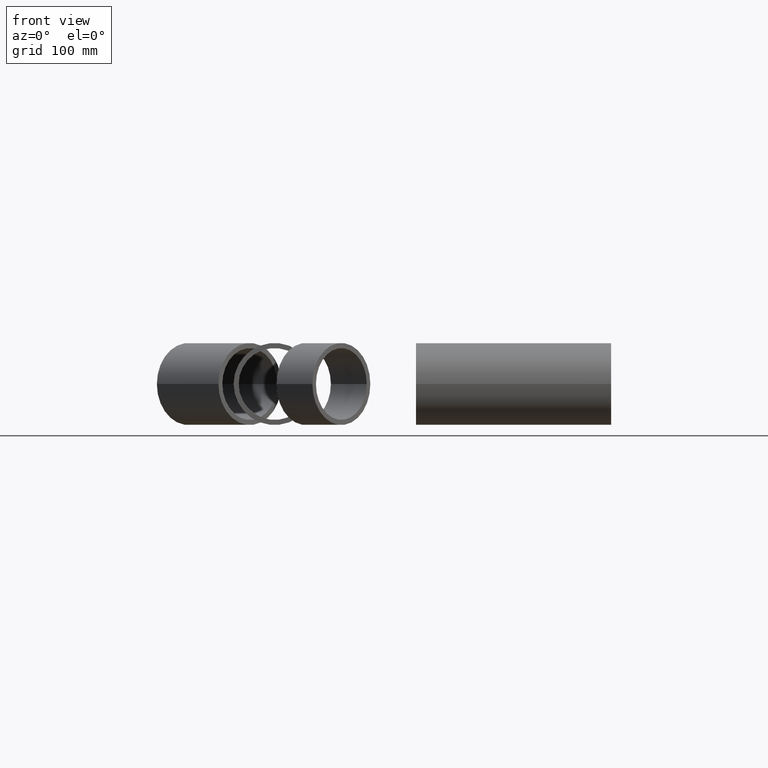
[diagram: clean part render]
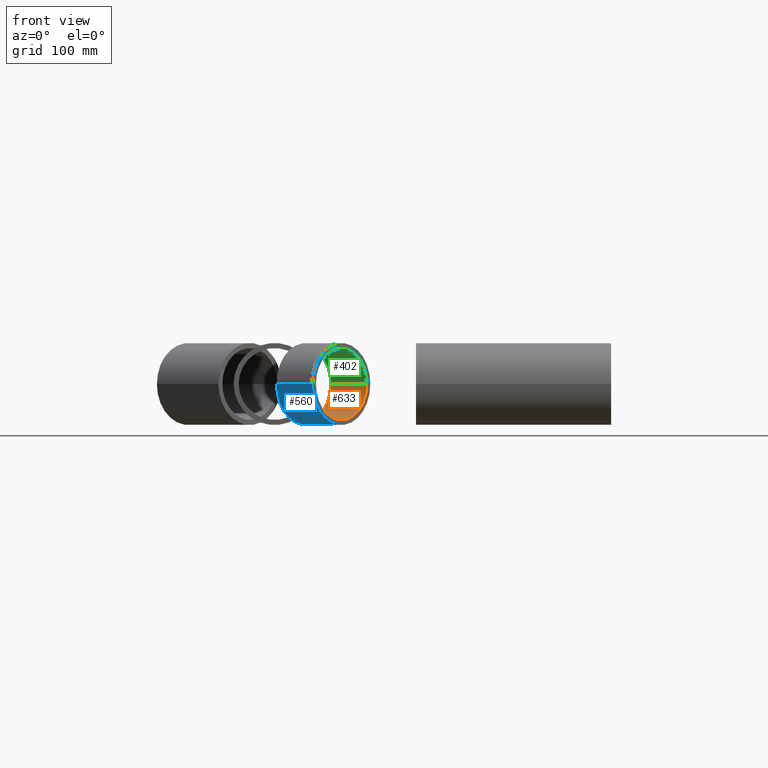
[diagram: same view with three faces highlighted in distinct colors, each labeled with its STEP entity id]
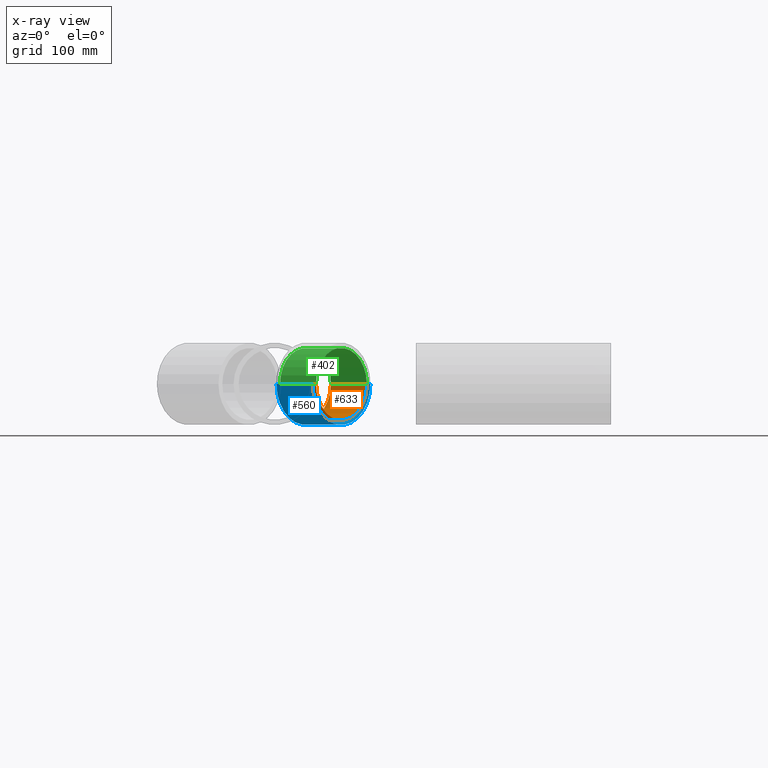
[diagram: x-ray of the same camera — body ghosted, the three highlighted faces saturated]
A machine part, front view with three faces highlighted in distinct colors.
The next image is the same camera in x-ray (body ghosted, the three faces saturated) — at least one of them is partly hidden behind the body in this view.
Their STEP definitions:

[orange] entity #633 — the highlighted cylindrical surface (edge-blend (fillet) strip) has radius 38.95 mm, axis along (-0.7071, 0.7071, -0).
#20 = EDGE_LOOP ( 'NONE', ( #720, #119, #463, #576 ) ) ;
#28 = CARTESIAN_POINT ( 'NONE',  ( -186.7682899632294209, 33.53627355413972566, 0.000000000000000000 ) ) ;
#57 = AXIS2_PLACEMENT_3D ( 'NONE', #28, #250, #695 ) ;
#74 = DIRECTION ( 'NONE',  ( 0.7071067811865520136, -0.7071067811865432429, 0.000000000000000000 ) ) ;
#81 = LINE ( 'NONE', #478, #369 ) ;
#107 = CARTESIAN_POINT ( 'NONE',  ( -159.2264808360135362, 61.07808268135593721, 4.769999282678943960E-15 ) ) ;
#119 = ORIENTED_EDGE ( 'NONE', *, *, #427, .T. ) ;
#130 = VECTOR ( 'NONE', #492, 1000.000000000000000 ) ;
#176 = CARTESIAN_POINT ( 'NONE',  ( -186.7682899632294209, 33.53627355413972566, 0.000000000000000000 ) ) ;
#183 = DIRECTION ( 'NONE',  ( 0.7071067811865431318, 0.7071067811865521247, 0.000000000000000000 ) ) ;
#222 = VERTEX_POINT ( 'NONE', #393 ) ;
#236 = VERTEX_POINT ( 'NONE', #446 ) ;
#250 = DIRECTION ( 'NONE',  ( -0.7071067811865519026, 0.7071067811865431318, -0.000000000000000000 ) ) ;
#296 = AXIS2_PLACEMENT_3D ( 'NONE', #176, #74, #183 ) ;
#297 = EDGE_CURVE ( 'NONE', #236, #222, #681, .T. ) ;
#357 = CARTESIAN_POINT ( 'NONE',  ( -253.2009720557056198, 44.88533739218336649, 0.000000000000000000 ) ) ;
#369 = VECTOR ( 'NONE', #648, 1000.000000000000000 ) ;
#373 = EDGE_CURVE ( 'NONE', #236, #610, #81, .T. ) ;
#393 = CARTESIAN_POINT ( 'NONE',  ( -159.2264808360135362, 61.07808268135593721, 4.769999282678943960E-15 ) ) ;
#403 = CARTESIAN_POINT ( 'NONE',  ( -225.6591629284897635, 72.42714651939957093, 0.000000000000000000 ) ) ;
#427 = EDGE_CURVE ( 'NONE', #222, #447, #435, .T. ) ;
#435 = LINE ( 'NONE', #107, #130 ) ;
#446 = CARTESIAN_POINT ( 'NONE',  ( -214.3100990904453056, 5.994464426923508782, 0.000000000000000000 ) ) ;
#447 = VERTEX_POINT ( 'NONE', #558 ) ;
#463 = ORIENTED_EDGE ( 'NONE', *, *, #687, .F. ) ;
#464 = DIRECTION ( 'NONE',  ( 0.7071067811865520136, -0.7071067811865432429, 0.000000000000000000 ) ) ;
#478 = CARTESIAN_POINT ( 'NONE',  ( -214.3100990904453056, 5.994464426923511446, 0.000000000000000000 ) ) ;
#485 = CIRCLE ( 'NONE', #725, 38.95000000000003126 ) ;
#492 = DIRECTION ( 'NONE',  ( -0.7071067811865519026, 0.7071067811865431318, -0.000000000000000000 ) ) ;
#558 = CARTESIAN_POINT ( 'NONE',  ( -198.1173538012738788, 99.96895564661578248, 4.769999282678943960E-15 ) ) ;
#576 = ORIENTED_EDGE ( 'NONE', *, *, #373, .F. ) ;
#585 = CYLINDRICAL_SURFACE ( 'NONE', #57, 38.95000000000003126 ) ;
#610 = VERTEX_POINT ( 'NONE', #357 ) ;
#628 = DIRECTION ( 'NONE',  ( 0.7071067811865431318, 0.7071067811865521247, 0.000000000000000000 ) ) ;
#633 = ADVANCED_FACE ( 'NONE', ( #703 ), #585, .F. ) ;
#648 = DIRECTION ( 'NONE',  ( -0.7071067811865519026, 0.7071067811865431318, -0.000000000000000000 ) ) ;
#681 = CIRCLE ( 'NONE', #296, 38.95000000000003126 ) ;
#687 = EDGE_CURVE ( 'NONE', #610, #447, #485, .T. ) ;
#695 = DIRECTION ( 'NONE',  ( -0.7071067811865431318, -0.7071067811865517916, 0.000000000000000000 ) ) ;
#703 = FACE_OUTER_BOUND ( 'NONE', #20, .T. ) ;
#720 = ORIENTED_EDGE ( 'NONE', *, *, #297, .T. ) ;
#725 = AXIS2_PLACEMENT_3D ( 'NONE', #403, #464, #628 ) ;

[blue] entity #560 — the highlighted cylindrical surface (partial cylindrical patch) has radius 44.45 mm, axis along (-0.7071, 0.7071, -0).
#4 = CYLINDRICAL_SURFACE ( 'NONE', #424, 44.45000000000001705 ) ;
#8 = ORIENTED_EDGE ( 'NONE', *, *, #623, .F. ) ;
#23 = CARTESIAN_POINT ( 'NONE',  ( -186.7682899632294209, 33.53627355413972566, 0.000000000000000000 ) ) ;
#71 = AXIS2_PLACEMENT_3D ( 'NONE', #561, #299, #528 ) ;
#72 = VECTOR ( 'NONE', #361, 1000.000000000000000 ) ;
#92 = DIRECTION ( 'NONE',  ( -0.7071067811865519026, 0.7071067811865431318, -0.000000000000000000 ) ) ;
#175 = VERTEX_POINT ( 'NONE', #461 ) ;
#178 = ORIENTED_EDGE ( 'NONE', *, *, #599, .F. ) ;
#188 = EDGE_LOOP ( 'NONE', ( #8, #178, #559, #632 ) ) ;
#197 = DIRECTION ( 'NONE',  ( 0.7071067811865520136, -0.7071067811865432429, 0.000000000000000000 ) ) ;
#235 = CARTESIAN_POINT ( 'NONE',  ( -186.7682899632294209, 33.53627355413972566, 0.000000000000000000 ) ) ;
#238 = AXIS2_PLACEMENT_3D ( 'NONE', #23, #197, #533 ) ;
#246 = CARTESIAN_POINT ( 'NONE',  ( -155.3373935394875502, 64.96716997788196579, 5.443555022209987275E-15 ) ) ;
#247 = VERTEX_POINT ( 'NONE', #621 ) ;
#299 = DIRECTION ( 'NONE',  ( 0.7071067811865520136, -0.7071067811865432429, 0.000000000000000000 ) ) ;
#322 = DIRECTION ( 'NONE',  ( -0.7071067811865519026, 0.7071067811865431318, -0.000000000000000000 ) ) ;
#334 = LINE ( 'NONE', #501, #564 ) ;
#361 = DIRECTION ( 'NONE',  ( -0.7071067811865519026, 0.7071067811865431318, -0.000000000000000000 ) ) ;
#401 = VERTEX_POINT ( 'NONE', #642 ) ;
#424 = AXIS2_PLACEMENT_3D ( 'NONE', #235, #322, #605 ) ;
#437 = CIRCLE ( 'NONE', #71, 44.45000000000002416 ) ;
#459 = EDGE_CURVE ( 'NONE', #401, #562, #334, .T. ) ;
#461 = CARTESIAN_POINT ( 'NONE',  ( -155.3373935394875502, 64.96716997788196579, 5.443555022209987275E-15 ) ) ;
#499 = CARTESIAN_POINT ( 'NONE',  ( -257.0900593522316058, 40.99625009565733080, 0.000000000000000000 ) ) ;
#501 = CARTESIAN_POINT ( 'NONE',  ( -218.1991863869712915, 2.105377130397482865, 0.000000000000000000 ) ) ;
#528 = DIRECTION ( 'NONE',  ( 0.7071067811865431318, 0.7071067811865519026, 0.000000000000000000 ) ) ;
#533 = DIRECTION ( 'NONE',  ( 0.7071067811865429098, 0.7071067811865520136, 0.000000000000000000 ) ) ;
#556 = CIRCLE ( 'NONE', #238, 44.45000000000003837 ) ;
#559 = ORIENTED_EDGE ( 'NONE', *, *, #459, .T. ) ;
#560 = ADVANCED_FACE ( 'NONE', ( #655 ), #4, .T. ) ;
#561 = CARTESIAN_POINT ( 'NONE',  ( -225.6591629284897635, 72.42714651939957093, 0.000000000000000000 ) ) ;
#562 = VERTEX_POINT ( 'NONE', #499 ) ;
#564 = VECTOR ( 'NONE', #92, 1000.000000000000000 ) ;
#572 = EDGE_CURVE ( 'NONE', #562, #247, #437, .T. ) ;
#579 = LINE ( 'NONE', #246, #72 ) ;
#599 = EDGE_CURVE ( 'NONE', #401, #175, #556, .T. ) ;
#605 = DIRECTION ( 'NONE',  ( -0.7071067811865432429, -0.7071067811865519026, 0.000000000000000000 ) ) ;
#621 = CARTESIAN_POINT ( 'NONE',  ( -194.2282665047478929, 103.8580429431418253, 5.443555022209987275E-15 ) ) ;
#623 = EDGE_CURVE ( 'NONE', #175, #247, #579, .T. ) ;
#632 = ORIENTED_EDGE ( 'NONE', *, *, #572, .T. ) ;
#642 = CARTESIAN_POINT ( 'NONE',  ( -218.1991863869712915, 2.105377130397482865, 0.000000000000000000 ) ) ;
#655 = FACE_OUTER_BOUND ( 'NONE', #188, .T. ) ;

[green] entity #402 — the highlighted cylindrical surface (edge-blend (fillet) strip) has radius 38.95 mm, axis along (-0.7071, 0.7071, -0).
#24 = AXIS2_PLACEMENT_3D ( 'NONE', #526, #588, #645 ) ;
#58 = ORIENTED_EDGE ( 'NONE', *, *, #364, .F. ) ;
#81 = LINE ( 'NONE', #478, #369 ) ;
#107 = CARTESIAN_POINT ( 'NONE',  ( -159.2264808360135362, 61.07808268135593721, 4.769999282678943960E-15 ) ) ;
#128 = CARTESIAN_POINT ( 'NONE',  ( -186.7682899632294209, 33.53627355413972566, 0.000000000000000000 ) ) ;
#130 = VECTOR ( 'NONE', #492, 1000.000000000000000 ) ;
#137 = FACE_OUTER_BOUND ( 'NONE', #552, .T. ) ;
#177 = CIRCLE ( 'NONE', #307, 38.95000000000003126 ) ;
#185 = ORIENTED_EDGE ( 'NONE', *, *, #214, .T. ) ;
#193 = AXIS2_PLACEMENT_3D ( 'NONE', #429, #584, #417 ) ;
#214 = EDGE_CURVE ( 'NONE', #222, #236, #177, .T. ) ;
#222 = VERTEX_POINT ( 'NONE', #393 ) ;
#236 = VERTEX_POINT ( 'NONE', #446 ) ;
#294 = ORIENTED_EDGE ( 'NONE', *, *, #373, .T. ) ;
#300 = ORIENTED_EDGE ( 'NONE', *, *, #427, .F. ) ;
#307 = AXIS2_PLACEMENT_3D ( 'NONE', #128, #360, #527 ) ;
#357 = CARTESIAN_POINT ( 'NONE',  ( -253.2009720557056198, 44.88533739218336649, 0.000000000000000000 ) ) ;
#360 = DIRECTION ( 'NONE',  ( 0.7071067811865520136, -0.7071067811865432429, 0.000000000000000000 ) ) ;
#364 = EDGE_CURVE ( 'NONE', #447, #610, #624, .T. ) ;
#369 = VECTOR ( 'NONE', #648, 1000.000000000000000 ) ;
#373 = EDGE_CURVE ( 'NONE', #236, #610, #81, .T. ) ;
#393 = CARTESIAN_POINT ( 'NONE',  ( -159.2264808360135362, 61.07808268135593721, 4.769999282678943960E-15 ) ) ;
#402 = ADVANCED_FACE ( 'NONE', ( #137 ), #713, .F. ) ;
#417 = DIRECTION ( 'NONE',  ( 0.7071067811865431318, 0.7071067811865521247, 0.000000000000000000 ) ) ;
#427 = EDGE_CURVE ( 'NONE', #222, #447, #435, .T. ) ;
#429 = CARTESIAN_POINT ( 'NONE',  ( -225.6591629284897635, 72.42714651939957093, 0.000000000000000000 ) ) ;
#435 = LINE ( 'NONE', #107, #130 ) ;
#446 = CARTESIAN_POINT ( 'NONE',  ( -214.3100990904453056, 5.994464426923508782, 0.000000000000000000 ) ) ;
#447 = VERTEX_POINT ( 'NONE', #558 ) ;
#478 = CARTESIAN_POINT ( 'NONE',  ( -214.3100990904453056, 5.994464426923511446, 0.000000000000000000 ) ) ;
#492 = DIRECTION ( 'NONE',  ( -0.7071067811865519026, 0.7071067811865431318, -0.000000000000000000 ) ) ;
#526 = CARTESIAN_POINT ( 'NONE',  ( -186.7682899632294209, 33.53627355413972566, 0.000000000000000000 ) ) ;
#527 = DIRECTION ( 'NONE',  ( 0.7071067811865431318, 0.7071067811865521247, 0.000000000000000000 ) ) ;
#552 = EDGE_LOOP ( 'NONE', ( #300, #185, #294, #58 ) ) ;
#558 = CARTESIAN_POINT ( 'NONE',  ( -198.1173538012738788, 99.96895564661578248, 4.769999282678943960E-15 ) ) ;
#584 = DIRECTION ( 'NONE',  ( 0.7071067811865520136, -0.7071067811865432429, 0.000000000000000000 ) ) ;
#588 = DIRECTION ( 'NONE',  ( -0.7071067811865519026, 0.7071067811865431318, -0.000000000000000000 ) ) ;
#610 = VERTEX_POINT ( 'NONE', #357 ) ;
#624 = CIRCLE ( 'NONE', #193, 38.95000000000003126 ) ;
#645 = DIRECTION ( 'NONE',  ( -0.7071067811865431318, -0.7071067811865517916, 0.000000000000000000 ) ) ;
#648 = DIRECTION ( 'NONE',  ( -0.7071067811865519026, 0.7071067811865431318, -0.000000000000000000 ) ) ;
#713 = CYLINDRICAL_SURFACE ( 'NONE', #24, 38.95000000000003126 ) ;